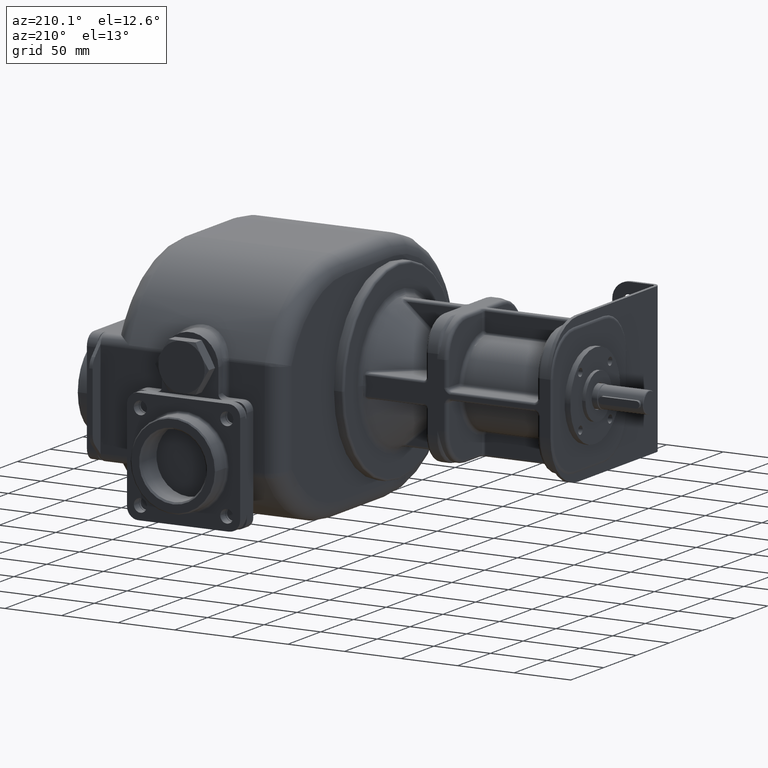
[diagram: clean part render]
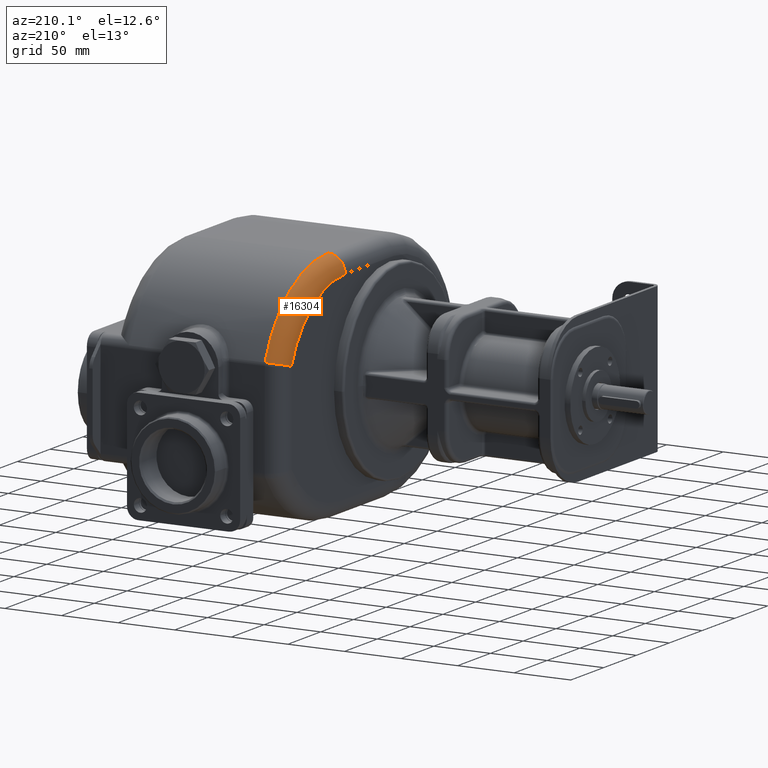
[diagram: same view with one face highlighted and labeled with its STEP entity id]
A machine part, auxiliary view. The second image highlights one B-rep face of the part: STEP entity #16304.
In plain terms, the highlighted toroidal blend (fillet) surface has major radius 88 mm and minor (blend) radius 15 mm.
Its self-contained STEP definition (entity closure, byte-faithful):
#1223=CARTESIAN_POINT('',(-7.E1,1.779157701947E2,0.E0));
#1224=DIRECTION('',(-1.E0,0.E0,0.E0));
#1225=DIRECTION('',(0.E0,0.E0,1.E0));
#1226=AXIS2_PLACEMENT_3D('',#1223,#1224,#1225);
#2614=CARTESIAN_POINT('',(-8.5E1,1.779157701947E2,0.E0));
#2615=DIRECTION('',(-1.E0,0.E0,0.E0));
#2616=DIRECTION('',(0.E0,0.E0,1.E0));
#2617=AXIS2_PLACEMENT_3D('',#2614,#2615,#2616);
#2647=CARTESIAN_POINT('',(-6.999663813158E1,2.745018413636E2,3.577891527903E1));
#2648=CARTESIAN_POINT('',(-7.018853214087E1,2.745018448399E2,3.577890584449E1));
#2649=CARTESIAN_POINT('',(-7.057190082939E1,2.744948418891E2,3.577700708896E1));
#2650=CARTESIAN_POINT('',(-7.114388404676E1,2.744630612443E2,3.576837676696E1));
#2651=CARTESIAN_POINT('',(-7.171488476715E1,2.744100917674E2,3.575406511632E1));
#2652=CARTESIAN_POINT('',(-7.228324522210E1,2.743360000451E2,3.573405511963E1));
#2653=CARTESIAN_POINT('',(-7.284832070530E1,2.742409198059E2,3.570832549356E1));
#2654=CARTESIAN_POINT('',(-7.340921036343E1,2.741250069973E2,3.567687414540E1));
#2655=CARTESIAN_POINT('',(-7.396516245953E1,2.739883954576E2,3.563980711052E1));
#2656=CARTESIAN_POINT('',(-7.451542590188E1,2.738312606357E2,3.559716754800E1));
#2657=CARTESIAN_POINT('',(-7.505926041558E1,2.736538002456E2,3.554899807125E1));
#2658=CARTESIAN_POINT('',(-7.559590754268E1,2.734562452253E2,3.549533267629E1));
#2659=CARTESIAN_POINT('',(-7.612452379052E1,2.732389030891E2,3.543618750720E1));
#2660=CARTESIAN_POINT('',(-7.664429348581E1,2.730020908349E2,3.537164395985E1));
#2661=CARTESIAN_POINT('',(-7.715439698262E1,2.727461420587E2,3.530186669032E1));
#2662=CARTESIAN_POINT('',(-7.765403529917E1,2.724714618021E2,3.522692971624E1));
#2663=CARTESIAN_POINT('',(-7.814241666645E1,2.721784965049E2,3.514692075891E1));
#2664=CARTESIAN_POINT('',(-7.861881352968E1,2.718677059720E2,3.506191614494E1));
#2665=CARTESIAN_POINT('',(-7.908260023298E1,2.715395338714E2,3.497193728743E1));
#2666=CARTESIAN_POINT('',(-7.953315515030E1,2.711944022495E2,3.487712043787E1));
#2667=CARTESIAN_POINT('',(-7.996984216365E1,2.708327411305E2,3.477769317398E1));
#2668=CARTESIAN_POINT('',(-8.039200159564E1,2.704550963536E2,3.467373978429E1));
#2669=CARTESIAN_POINT('',(-8.079899973686E1,2.700620272206E2,3.456537280841E1));
#2670=CARTESIAN_POINT('',(-8.119022726011E1,2.696541194855E2,3.445269661173E1));
#2671=CARTESIAN_POINT('',(-8.156510250136E1,2.692319915963E2,3.433577942364E1));
#2672=CARTESIAN_POINT('',(-8.192307229735E1,2.687962315717E2,3.421480838429E1));
#2673=CARTESIAN_POINT('',(-8.226357173954E1,2.683474677186E2,3.409005498715E1));
#2674=CARTESIAN_POINT('',(-8.258604211449E1,2.678864481340E2,3.396164788940E1));
#2675=CARTESIAN_POINT('',(-8.288995521407E1,2.674139493135E2,3.382975607122E1));
#2676=CARTESIAN_POINT('',(-8.317488784345E1,2.669306613575E2,3.369452064015E1));
#2677=CARTESIAN_POINT('',(-8.344047708437E1,2.664372345915E2,3.355601503946E1));
#2678=CARTESIAN_POINT('',(-8.368636889237E1,2.659342594366E2,3.341450048030E1));
#2679=CARTESIAN_POINT('',(-8.391214673310E1,2.654224963880E2,3.327034048775E1));
#2680=CARTESIAN_POINT('',(-8.411742276570E1,2.649028600754E2,3.312366564829E1));
#2681=CARTESIAN_POINT('',(-8.430185508781E1,2.643762797934E2,3.297466882359E1));
#2682=CARTESIAN_POINT('',(-8.446520082726E1,2.638435484002E2,3.282349011783E1));
#2683=CARTESIAN_POINT('',(-8.460725674127E1,2.633054245577E2,3.267022008125E1));
#2684=CARTESIAN_POINT('',(-8.472783910533E1,2.627626298801E2,3.251509353916E1));
#2685=CARTESIAN_POINT('',(-8.482680013759E1,2.622157319782E2,3.235846035734E1));
#2686=CARTESIAN_POINT('',(-8.490400423273E1,2.616653588399E2,3.220056247125E1));
#2687=CARTESIAN_POINT('',(-8.495929057026E1,2.611121971949E2,3.204143483601E1));
#2688=CARTESIAN_POINT('',(-8.499262537870E1,2.605566969120E2,3.188204450412E1));
#2689=CARTESIAN_POINT('',(-8.499989909127E1,2.601857512529E2,3.177389388344E1));
#2690=CARTESIAN_POINT('',(-8.5E1,2.600000000061E2,3.172032814120E1));
#2737=CARTESIAN_POINT('',(-7.E1,1.779157701947E2,8.8E1));
#2738=DIRECTION('',(0.E0,1.E0,0.E0));
#2739=DIRECTION('',(-1.E0,0.E0,0.E0));
#2740=AXIS2_PLACEMENT_3D('',#2737,#2738,#2739);
#11987=CARTESIAN_POINT('',(-8.5E1,2.600000000015E2,3.172031897446E1));
#11989=VERTEX_POINT('',#11987);
#12005=CARTESIAN_POINT('',(-8.5E1,1.779157701947E2,8.8E1));
#12006=VERTEX_POINT('',#12005);
#12007=CARTESIAN_POINT('',(-7.E1,1.779157701946E2,1.03E2));
#12008=VERTEX_POINT('',#12007);
#12009=CARTESIAN_POINT('',(-7.E1,2.745018390799E2,3.577892252867E1));
#12010=VERTEX_POINT('',#12009);
#16292=CARTESIAN_POINT('',(-7.E1,1.779157701947E2,0.E0));
#16293=DIRECTION('',(-1.E0,0.E0,0.E0));
#16294=DIRECTION('',(0.E0,-5.724595898463E-1,-8.199329350581E-1));
#16295=AXIS2_PLACEMENT_3D('',#16292,#16293,#16294);
#16296=TOROIDAL_SURFACE('',#16295,8.8E1,1.5E1);
#16297=ORIENTED_EDGE('',*,*,#14969,.F.);
#16299=ORIENTED_EDGE('',*,*,#16298,.F.);
#16300=ORIENTED_EDGE('',*,*,#16208,.T.);
#16301=ORIENTED_EDGE('',*,*,#16286,.F.);
#16302=EDGE_LOOP('',(#16297,#16299,#16300,#16301));
#16303=FACE_OUTER_BOUND('',#16302,.F.);
#16304=ADVANCED_FACE('',(#16303),#16296,.T.);
#1227=CIRCLE('',#1226,1.03E2);
#2618=CIRCLE('',#2617,8.8E1);
#2691=B_SPLINE_CURVE_WITH_KNOTS('',3,(#2647,#2648,#2649,#2650,#2651,#2652,#2653,
#2654,#2655,#2656,#2657,#2658,#2659,#2660,#2661,#2662,#2663,#2664,#2665,#2666,
#2667,#2668,#2669,#2670,#2671,#2672,#2673,#2674,#2675,#2676,#2677,#2678,#2679,
#2680,#2681,#2682,#2683,#2684,#2685,#2686,#2687,#2688,#2689,#2690),
.UNSPECIFIED.,.F.,.F.,(4,1,1,1,1,1,1,1,1,1,1,1,1,1,1,1,1,1,1,1,1,1,1,1,1,1,1,1,
1,1,1,1,1,1,1,1,1,1,1,1,1,4),(0.E0,2.439024390244E-2,4.878048780488E-2,
7.317073170732E-2,9.756097560976E-2,1.219512195122E-1,1.463414634146E-1,
1.707317073171E-1,1.951219512195E-1,2.195121951220E-1,2.439024390244E-1,
2.682926829268E-1,2.926829268293E-1,3.170731707317E-1,3.414634146341E-1,
3.658536585366E-1,3.902439024390E-1,4.146341463415E-1,4.390243902439E-1,
4.634146341463E-1,4.878048780488E-1,5.121951219512E-1,5.365853658537E-1,
5.609756097561E-1,5.853658536585E-1,6.097560975610E-1,6.341463414634E-1,
6.585365853659E-1,6.829268292683E-1,7.073170731707E-1,7.317073170732E-1,
7.560975609756E-1,7.804878048780E-1,8.048780487805E-1,8.292682926829E-1,
8.536585365854E-1,8.780487804878E-1,9.024390243902E-1,9.268292682927E-1,
9.512195121951E-1,9.756097560976E-1,1.E0),.UNSPECIFIED.);
#2741=CIRCLE('',#2740,1.5E1);
#14969=EDGE_CURVE('',#12008,#12010,#1227,.T.);
#16208=EDGE_CURVE('',#12006,#11989,#2618,.T.);
#16286=EDGE_CURVE('',#12010,#11989,#2691,.T.);
#16298=EDGE_CURVE('',#12006,#12008,#2741,.T.);